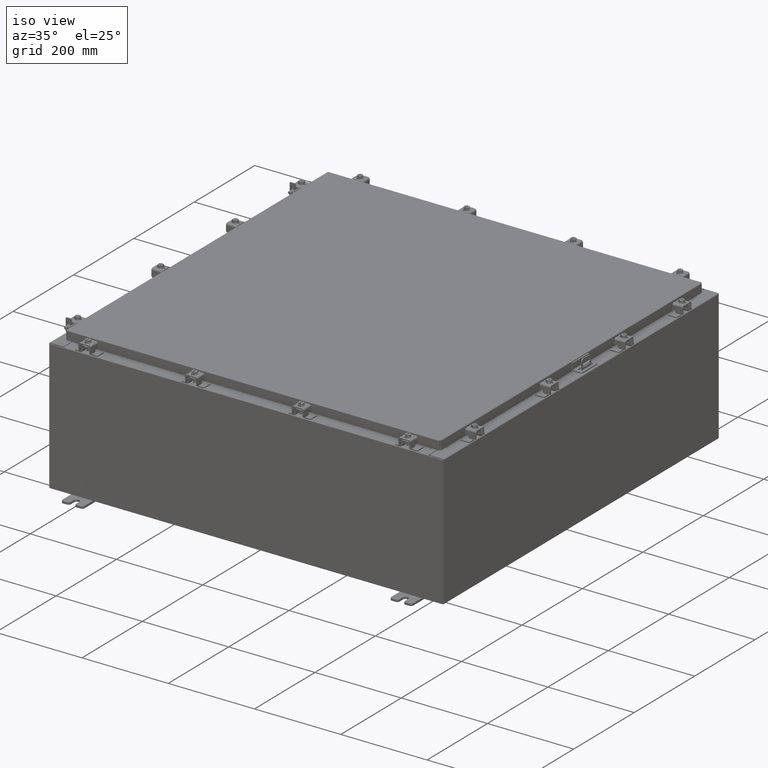
[diagram: clean part render]
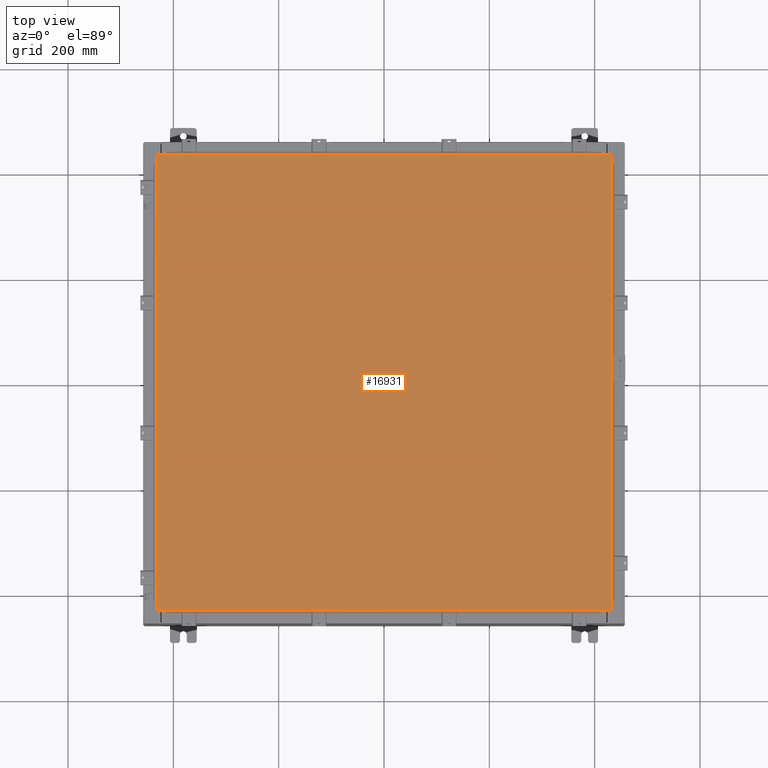
[diagram: tour spotlight — one face highlighted and labeled with its STEP entity id]
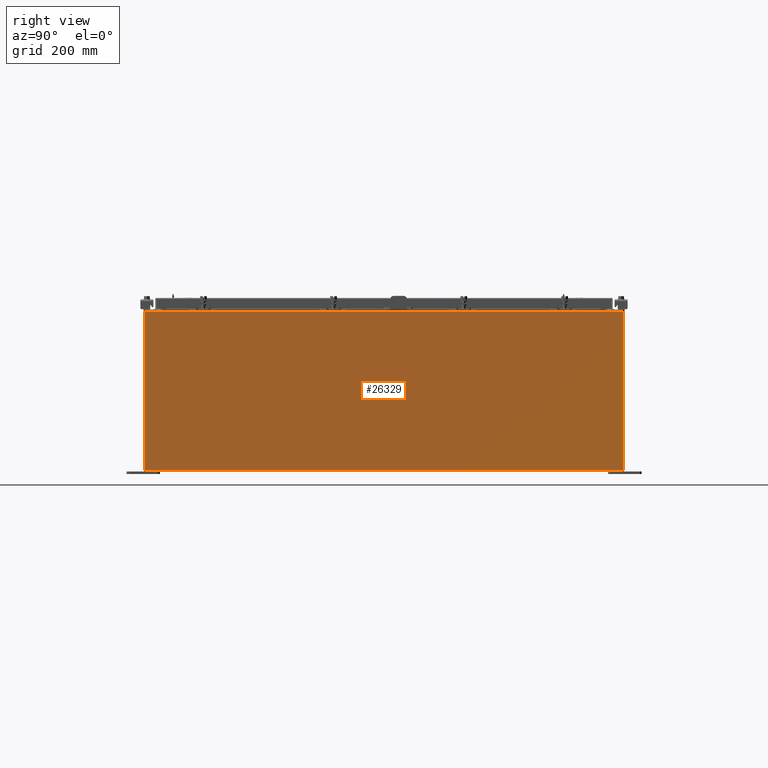
[diagram: tour spotlight — one face highlighted and labeled with its STEP entity id]
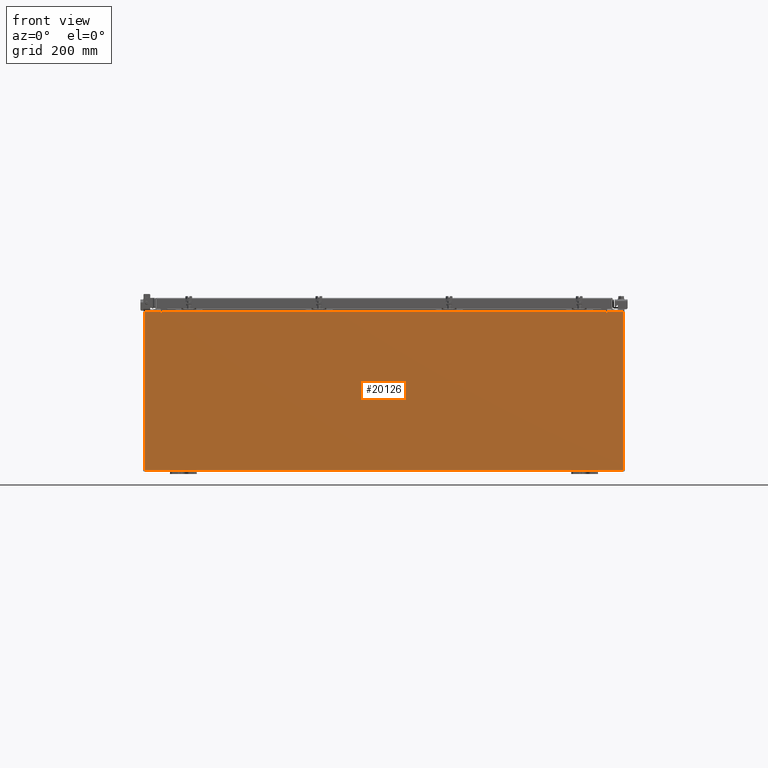
[diagram: tour spotlight — one face highlighted and labeled with its STEP entity id]
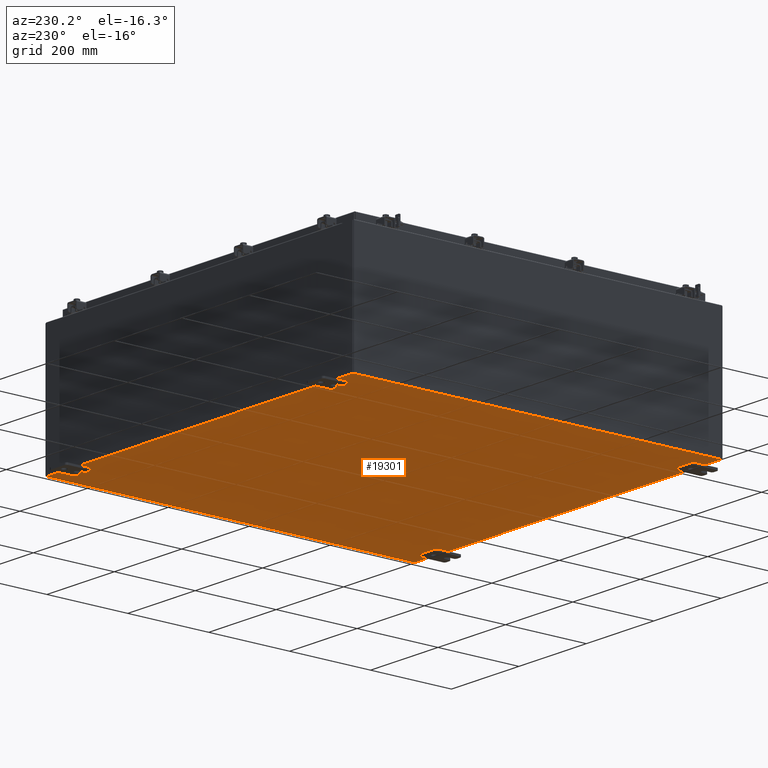
[diagram: tour spotlight — one face highlighted and labeled with its STEP entity id]
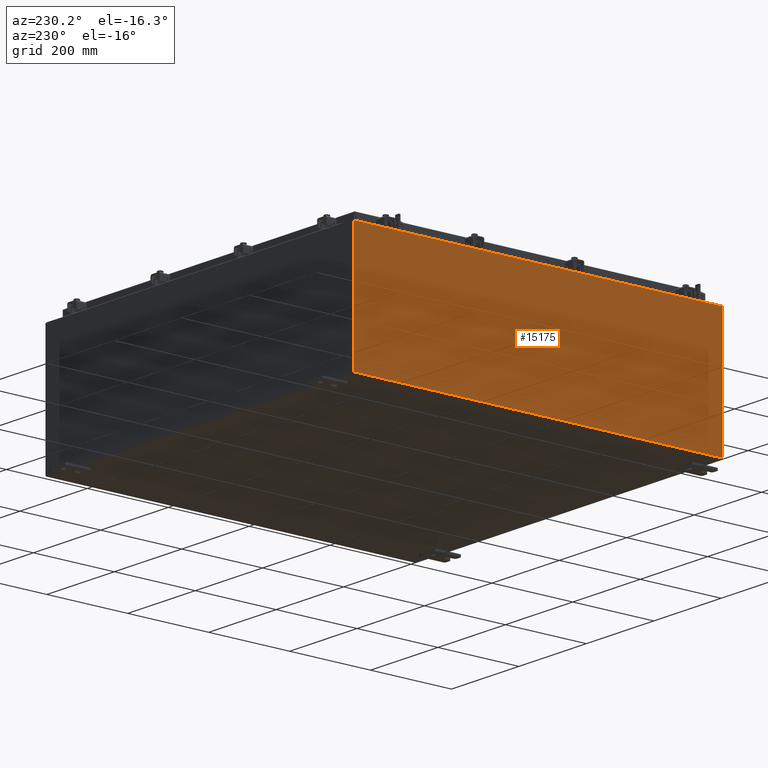
[diagram: tour spotlight — one face highlighted and labeled with its STEP entity id]
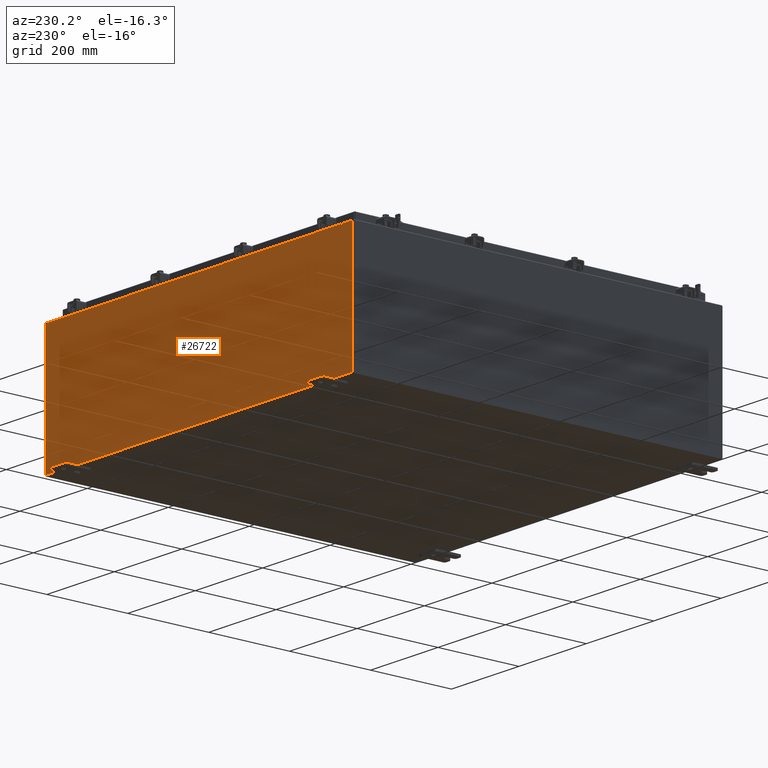
[diagram: tour spotlight — one face highlighted and labeled with its STEP entity id]
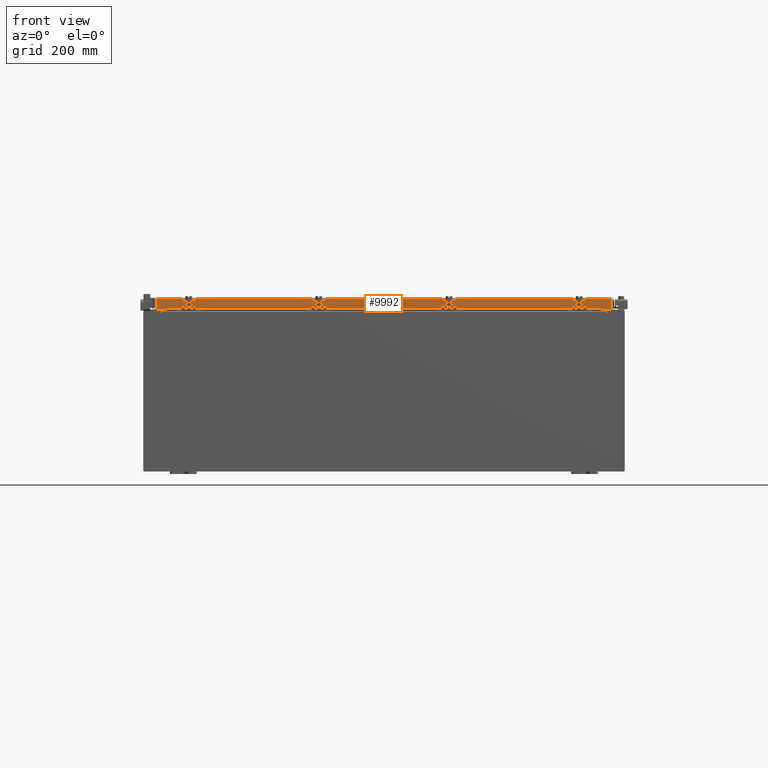
[diagram: tour spotlight — one face highlighted and labeled with its STEP entity id]
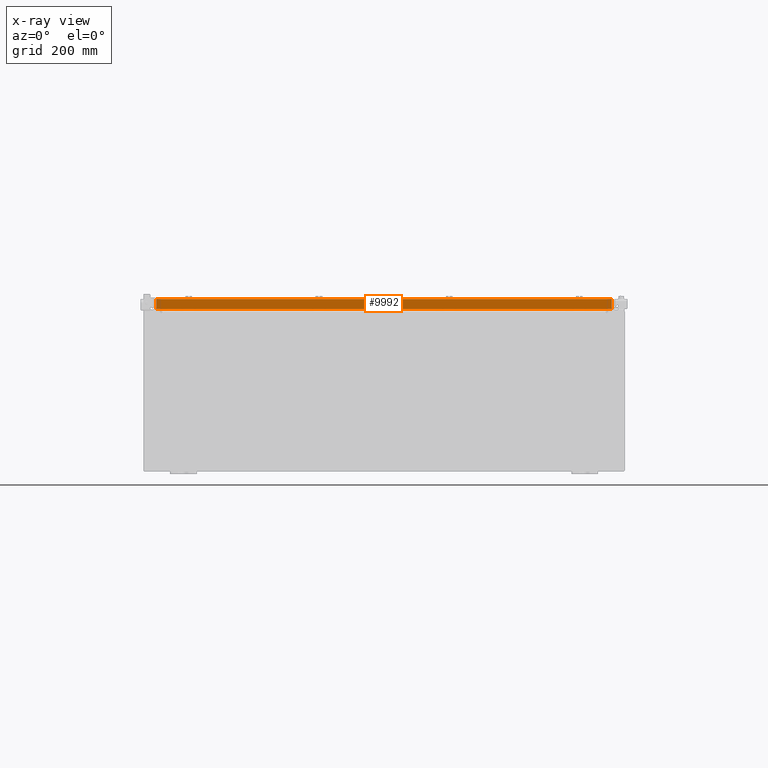
[diagram: x-ray of the same camera — body ghosted, this tour face saturated]
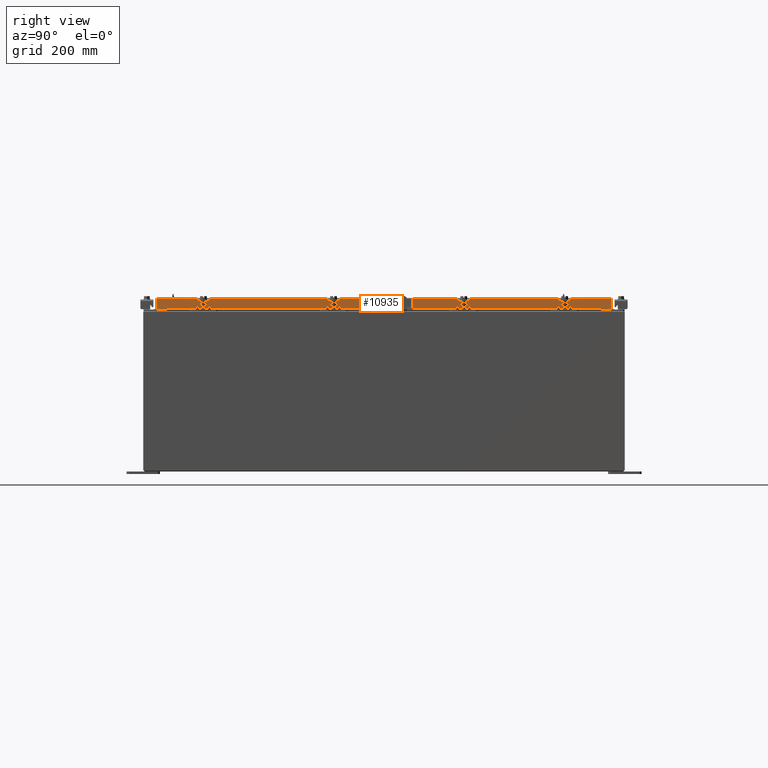
[diagram: tour spotlight — one face highlighted and labeled with its STEP entity id]
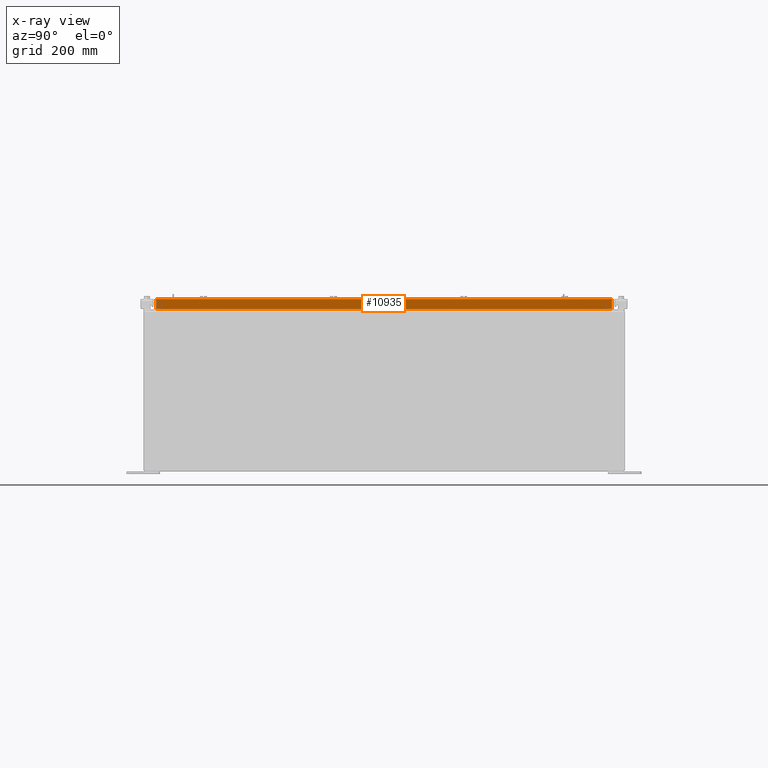
[diagram: x-ray of the same camera — body ghosted, this tour face saturated]
A machine part: a face-by-face anatomy tour. The part has 2822 B-rep faces; the first image is the clean iso view, then the 8 largest visible faces are spotlighted one at a time (largest first), each with its STEP entity span.

Face 1 — top view, entity #16931. In plain terms, the highlighted planar face has unit normal (0, 0, -1).
Definition (entity closure, byte-faithful):
#135 = CARTESIAN_POINT ( 'NONE',  ( 17.00630000000000000, -17.00630000000000000, 0.0000000000000000000 ) ) ;
#420 = VERTEX_POINT ( 'NONE', #16149 ) ;
#1603 = CARTESIAN_POINT ( 'NONE',  ( 0.0000000000000000000, 0.0000000000000000000, 0.0000000000000000000 ) ) ;
#1652 = LINE ( 'NONE', #9527, #6563 ) ;
#1814 = CARTESIAN_POINT ( 'NONE',  ( -17.00630000000000000, 17.00630000000000000, 0.0000000000000000000 ) ) ;
#4761 = LINE ( 'NONE', #1814, #10307 ) ;
#5596 = CARTESIAN_POINT ( 'NONE',  ( -17.00630000000000000, -17.00630000000000000, 0.0000000000000000000 ) ) ;
#5983 = EDGE_CURVE ( 'NONE', #12420, #420, #8055, .T. ) ;
#6186 = EDGE_CURVE ( 'NONE', #420, #9768, #4761, .T. ) ;
#6563 = VECTOR ( 'NONE', #15863, 39.37007874015748100 ) ;
#7317 = ORIENTED_EDGE ( 'NONE', *, *, #5983, .T. ) ;
#7468 = EDGE_LOOP ( 'NONE', ( #26010, #16503, #7317, #14962 ) ) ;
#7912 = DIRECTION ( 'NONE',  ( -1.000000000000000000, 0.0000000000000000000, -0.0000000000000000000 ) ) ;
#8055 = LINE ( 'NONE', #24265, #19197 ) ;
#9028 = VERTEX_POINT ( 'NONE', #135 ) ;
#9385 = EDGE_CURVE ( 'NONE', #9768, #9028, #1652, .T. ) ;
#9527 = CARTESIAN_POINT ( 'NONE',  ( -17.00630000000000000, -17.00630000000000000, 0.0000000000000000000 ) ) ;
#9566 = DIRECTION ( 'NONE',  ( -1.000000000000000000, -0.0000000000000000000, -0.0000000000000000000 ) ) ;
#9768 = VERTEX_POINT ( 'NONE', #5596 ) ;
#9887 = PLANE ( 'NONE',  #11841 ) ;
#10307 = VECTOR ( 'NONE', #24799, 39.37007874015748100 ) ;
#11013 = EDGE_CURVE ( 'NONE', #9028, #12420, #13071, .T. ) ;
#11841 = AXIS2_PLACEMENT_3D ( 'NONE', #1603, #20449, #7912 ) ;
#12420 = VERTEX_POINT ( 'NONE', #24519 ) ;
#13071 = LINE ( 'NONE', #26804, #18001 ) ;
#14208 = DIRECTION ( 'NONE',  ( 0.0000000000000000000, 1.000000000000000000, 0.0000000000000000000 ) ) ;
#14962 = ORIENTED_EDGE ( 'NONE', *, *, #6186, .T. ) ;
#15863 = DIRECTION ( 'NONE',  ( 1.000000000000000000, -0.0000000000000000000, -0.0000000000000000000 ) ) ;
#16149 = CARTESIAN_POINT ( 'NONE',  ( -17.00630000000000000, 17.00630000000000000, 0.0000000000000000000 ) ) ;
#16167 = FACE_OUTER_BOUND ( 'NONE', #7468, .T. ) ;
#16503 = ORIENTED_EDGE ( 'NONE', *, *, #11013, .T. ) ;
#16931 = ADVANCED_FACE ( 'NONE', ( #16167 ), #9887, .F. ) ;
#18001 = VECTOR ( 'NONE', #14208, 39.37007874015748100 ) ;
#19197 = VECTOR ( 'NONE', #9566, 39.37007874015748100 ) ;
#20449 = DIRECTION ( 'NONE',  ( 0.0000000000000000000, 0.0000000000000000000, -1.000000000000000000 ) ) ;
#24265 = CARTESIAN_POINT ( 'NONE',  ( 17.00630000000000000, 17.00630000000000000, 0.0000000000000000000 ) ) ;
#24519 = CARTESIAN_POINT ( 'NONE',  ( 17.00630000000000000, 17.00630000000000000, 0.0000000000000000000 ) ) ;
#24799 = DIRECTION ( 'NONE',  ( 0.0000000000000000000, -1.000000000000000000, 0.0000000000000000000 ) ) ;
#26010 = ORIENTED_EDGE ( 'NONE', *, *, #9385, .T. ) ;
#26804 = CARTESIAN_POINT ( 'NONE',  ( 17.00630000000000000, -17.00630000000000000, 0.0000000000000000000 ) ) ;

Face 2 — right view, entity #26329. In plain terms, the highlighted planar face has unit normal (-1, 0, 0).
Definition (entity closure, byte-faithful):
#560 = CARTESIAN_POINT ( 'NONE',  ( 18.00000000000000000, -17.92530000000000000, 0.01299999999999984700 ) ) ;
#2002 = VERTEX_POINT ( 'NONE', #4715 ) ;
#2028 = PLANE ( 'NONE',  #10430 ) ;
#2374 = DIRECTION ( 'NONE',  ( -3.482016343714355500E-015, 0.0000000000000000000, -1.000000000000000000 ) ) ;
#2669 = DIRECTION ( 'NONE',  ( 2.122662239958547800E-031, -1.000000000000000000, 6.096072018129156600E-017 ) ) ;
#3449 = CARTESIAN_POINT ( 'NONE',  ( 18.00000000000004300, 17.92530000000000000, 11.83760000000000200 ) ) ;
#4116 = DIRECTION ( 'NONE',  ( 3.482016343714355100E-015, 0.0000000000000000000, 1.000000000000000000 ) ) ;
#4299 = CARTESIAN_POINT ( 'NONE',  ( 18.00000000000000000, 17.92530000000000000, -5.965204533939718800E-014 ) ) ;
#4715 = CARTESIAN_POINT ( 'NONE',  ( 18.00000000000000000, -17.92530000000000000, 0.01300000000000022700 ) ) ;
#5634 = EDGE_CURVE ( 'NONE', #8447, #2002, #26445, .T. ) ;
#6492 = VECTOR ( 'NONE', #2669, 39.37007874015748100 ) ;
#8447 = VERTEX_POINT ( 'NONE', #25559 ) ;
#9958 = VECTOR ( 'NONE', #2374, 39.37007874015748100 ) ;
#10190 = ORIENTED_EDGE ( 'NONE', *, *, #21989, .F. ) ;
#10430 = AXIS2_PLACEMENT_3D ( 'NONE', #27157, #20795, #4116 ) ;
#12483 = ORIENTED_EDGE ( 'NONE', *, *, #14239, .T. ) ;
#13241 = CARTESIAN_POINT ( 'NONE',  ( 18.00000000000004300, 17.92530000000000000, 11.83760000000000200 ) ) ;
#13562 = VECTOR ( 'NONE', #18964, 39.37007874015748100 ) ;
#13875 = LINE ( 'NONE', #13241, #24389 ) ;
#14239 = EDGE_CURVE ( 'NONE', #27001, #20244, #26720, .T. ) ;
#17042 = CARTESIAN_POINT ( 'NONE',  ( 18.00000000000000000, -17.92530000000000000, -6.293710784286997500E-014 ) ) ;
#17311 = ORIENTED_EDGE ( 'NONE', *, *, #24605, .T. ) ;
#18964 = DIRECTION ( 'NONE',  ( 3.482016343714355500E-015, -1.832640180902292400E-016, 1.000000000000000000 ) ) ;
#19922 = EDGE_LOOP ( 'NONE', ( #17311, #23599, #10190, #12483 ) ) ;
#20244 = VERTEX_POINT ( 'NONE', #3449 ) ;
#20795 = DIRECTION ( 'NONE',  ( -1.000000000000000000, 0.0000000000000000000, 3.482016343714355100E-015 ) ) ;
#21989 = EDGE_CURVE ( 'NONE', #27001, #2002, #23198, .T. ) ;
#22117 = FACE_OUTER_BOUND ( 'NONE', #19922, .T. ) ;
#23198 = LINE ( 'NONE', #560, #6492 ) ;
#23599 = ORIENTED_EDGE ( 'NONE', *, *, #5634, .T. ) ;
#23689 = DIRECTION ( 'NONE',  ( -0.0000000000000000000, -1.000000000000000000, -0.0000000000000000000 ) ) ;
#24389 = VECTOR ( 'NONE', #23689, 39.37007874015748100 ) ;
#24605 = EDGE_CURVE ( 'NONE', #20244, #8447, #13875, .T. ) ;
#25075 = CARTESIAN_POINT ( 'NONE',  ( 18.00000000000000000, 17.92530000000000000, 0.01299999999999766100 ) ) ;
#25559 = CARTESIAN_POINT ( 'NONE',  ( 18.00000000000004300, -17.92530000000000000, 11.83760000000000200 ) ) ;
#26329 = ADVANCED_FACE ( 'NONE', ( #22117 ), #2028, .F. ) ;
#26445 = LINE ( 'NONE', #17042, #9958 ) ;
#26720 = LINE ( 'NONE', #4299, #13562 ) ;
#27001 = VERTEX_POINT ( 'NONE', #25075 ) ;
#27157 = CARTESIAN_POINT ( 'NONE',  ( 18.00000000000000000, 0.0000000000000000000, -6.293710784286997500E-014 ) ) ;

Face 3 — front view, entity #20126. In plain terms, the highlighted planar face has unit normal (-0, 1, -0).
Definition (entity closure, byte-faithful):
#187 = DIRECTION ( 'NONE',  ( -8.681145560799821800E-014, 0.0000000000000000000, -1.000000000000000000 ) ) ;
#285 = CARTESIAN_POINT ( 'NONE',  ( 16.63720000000000400, 0.0000000000000000000, 5.874949999999999200 ) ) ;
#575 = VECTOR ( 'NONE', #17950, 39.37007874015748100 ) ;
#804 = EDGE_CURVE ( 'NONE', #23674, #12565, #9283, .T. ) ;
#960 = DIRECTION ( 'NONE',  ( 1.000000000000000000, 0.0000000000000000000, 3.048036009064577000E-017 ) ) ;
#1239 = LINE ( 'NONE', #15818, #575 ) ;
#1430 = VERTEX_POINT ( 'NONE', #17681 ) ;
#1512 = ORIENTED_EDGE ( 'NONE', *, *, #1630, .F. ) ;
#1555 = DIRECTION ( 'NONE',  ( 0.0000000000000000000, 0.0000000000000000000, 1.000000000000000000 ) ) ;
#1630 = EDGE_CURVE ( 'NONE', #14278, #10570, #1679, .T. ) ;
#1670 = CARTESIAN_POINT ( 'NONE',  ( -17.92529999999999600, 0.0000000000000000000, -5.925300000000000000 ) ) ;
#1679 = LINE ( 'NONE', #16104, #23293 ) ;
#1779 = VECTOR ( 'NONE', #23397, 39.37007874015748100 ) ;
#1960 = LINE ( 'NONE', #20729, #7532 ) ;
#2409 = EDGE_CURVE ( 'NONE', #12565, #3392, #1960, .T. ) ;
#2474 = CARTESIAN_POINT ( 'NONE',  ( -16.67455000000000000, 0.0000000000000000000, 5.925299999999999100 ) ) ;
#2906 = ORIENTED_EDGE ( 'NONE', *, *, #16742, .T. ) ;
#3088 = EDGE_CURVE ( 'NONE', #13089, #10570, #11096, .T. ) ;
#3235 = ORIENTED_EDGE ( 'NONE', *, *, #2409, .T. ) ;
#3337 = DIRECTION ( 'NONE',  ( 0.0000000000000000000, 0.0000000000000000000, 1.000000000000000000 ) ) ;
#3360 = DIRECTION ( 'NONE',  ( 0.0000000000000000000, -1.000000000000000000, 0.0000000000000000000 ) ) ;
#3392 = VERTEX_POINT ( 'NONE', #1670 ) ;
#3747 = VERTEX_POINT ( 'NONE', #15455 ) ;
#3957 = DIRECTION ( 'NONE',  ( -1.000000000000000000, -0.0000000000000000000, -0.0000000000000000000 ) ) ;
#3969 = CARTESIAN_POINT ( 'NONE',  ( 17.92530000000000400, 0.0000000000000000000, -5.925300000000000000 ) ) ;
#4551 = FACE_OUTER_BOUND ( 'NONE', #19842, .T. ) ;
#4988 = ORIENTED_EDGE ( 'NONE', *, *, #7119, .F. ) ;
#5010 = CARTESIAN_POINT ( 'NONE',  ( -17.92529999999999600, 0.0000000000000000000, 5.925299999999999100 ) ) ;
#5681 = VERTEX_POINT ( 'NONE', #2474 ) ;
#6252 = CARTESIAN_POINT ( 'NONE',  ( 17.92530000000000400, 0.0000000000000000000, 5.925300000000000000 ) ) ;
#6279 = CARTESIAN_POINT ( 'NONE',  ( -16.67455000000000000, 0.0000000000000000000, 5.874949999999999200 ) ) ;
#6285 = CARTESIAN_POINT ( 'NONE',  ( 16.63720000000000400, 0.0000000000000000000, 5.912299999999999200 ) ) ;
#6580 = VERTEX_POINT ( 'NONE', #5010 ) ;
#6626 = CARTESIAN_POINT ( 'NONE',  ( 16.65587500000000500, 0.0000000000000000000, 5.874949999999999200 ) ) ;
#6916 = VECTOR ( 'NONE', #960, 39.37007874015748100 ) ;
#6999 = VERTEX_POINT ( 'NONE', #21015 ) ;
#7119 = EDGE_CURVE ( 'NONE', #13089, #3747, #24059, .T. ) ;
#7485 = CARTESIAN_POINT ( 'NONE',  ( 0.0000000000000000000, 0.0000000000000000000, 0.0000000000000000000 ) ) ;
#7532 = VECTOR ( 'NONE', #3957, 39.37007874015748100 ) ;
#7936 = ORIENTED_EDGE ( 'NONE', *, *, #3088, .T. ) ;
#8316 = VECTOR ( 'NONE', #187, 39.37007874015748100 ) ;
#8354 = ORIENTED_EDGE ( 'NONE', *, *, #26423, .F. ) ;
#8522 = ORIENTED_EDGE ( 'NONE', *, *, #15311, .F. ) ;
#8697 = DIRECTION ( 'NONE',  ( 0.0000000000000000000, 0.0000000000000000000, -1.000000000000000000 ) ) ;
#9283 = LINE ( 'NONE', #17514, #14207 ) ;
#9946 = DIRECTION ( 'NONE',  ( -0.0000000000000000000, -0.0000000000000000000, 1.000000000000000000 ) ) ;
#10096 = VECTOR ( 'NONE', #3337, 39.37007874015748100 ) ;
#10570 = VERTEX_POINT ( 'NONE', #6285 ) ;
#10602 = CARTESIAN_POINT ( 'NONE',  ( 16.67454999999949500, -0.0000000000000000000, -1.447541957108302900E-012 ) ) ;
#10893 = EDGE_CURVE ( 'NONE', #18286, #5681, #26885, .T. ) ;
#11096 = LINE ( 'NONE', #24830, #21604 ) ;
#11366 = DIRECTION ( 'NONE',  ( 0.0000000000000000000, 0.0000000000000000000, -1.000000000000000000 ) ) ;
#11798 = CIRCLE ( 'NONE', #16483, 0.01867499999999949400 ) ;
#12120 = DIRECTION ( 'NONE',  ( -0.0000000000000000000, 1.000000000000000000, -0.0000000000000000000 ) ) ;
#12565 = VERTEX_POINT ( 'NONE', #3969 ) ;
#13089 = VERTEX_POINT ( 'NONE', #17828 ) ;
#14207 = VECTOR ( 'NONE', #11366, 39.37007874015748100 ) ;
#14278 = VERTEX_POINT ( 'NONE', #285 ) ;
#15311 = EDGE_CURVE ( 'NONE', #3747, #18286, #24683, .T. ) ;
#15455 = CARTESIAN_POINT ( 'NONE',  ( -16.63720000000000000, -0.0000000000000000000, 5.874949999999999200 ) ) ;
#15599 = ORIENTED_EDGE ( 'NONE', *, *, #19185, .F. ) ;
#15818 = CARTESIAN_POINT ( 'NONE',  ( -17.92529999999999600, 0.0000000000000000000, 5.925299999999999100 ) ) ;
#16104 = CARTESIAN_POINT ( 'NONE',  ( 16.63720000000000400, 0.0000000000000000000, 0.0000000000000000000 ) ) ;
#16433 = ORIENTED_EDGE ( 'NONE', *, *, #21389, .T. ) ;
#16483 = AXIS2_PLACEMENT_3D ( 'NONE', #6626, #21268, #8697 ) ;
#16742 = EDGE_CURVE ( 'NONE', #1430, #23674, #26270, .T. ) ;
#17514 = CARTESIAN_POINT ( 'NONE',  ( 17.92530000000000400, 0.0000000000000000000, 5.925300000000000000 ) ) ;
#17681 = CARTESIAN_POINT ( 'NONE',  ( 16.67455000000000700, 0.0000000000000000000, 5.925300000000000000 ) ) ;
#17721 = CARTESIAN_POINT ( 'NONE',  ( -17.92529999999999600, 0.0000000000000000000, 5.925299999999999100 ) ) ;
#17828 = CARTESIAN_POINT ( 'NONE',  ( -16.63720000000000000, 3.756290991288361700E-016, 5.912299999999999200 ) ) ;
#17942 = LINE ( 'NONE', #20516, #23513 ) ;
#17950 = DIRECTION ( 'NONE',  ( 1.000000000000000000, 0.0000000000000000000, 3.048036009064577000E-017 ) ) ;
#17995 = CARTESIAN_POINT ( 'NONE',  ( -16.67455000000000000, -0.0000000000000000000, 0.0000000000000000000 ) ) ;
#18028 = DIRECTION ( 'NONE',  ( 0.0000000000000000000, -0.0000000000000000000, -1.000000000000000000 ) ) ;
#18280 = ORIENTED_EDGE ( 'NONE', *, *, #22227, .T. ) ;
#18286 = VERTEX_POINT ( 'NONE', #6279 ) ;
#19182 = CARTESIAN_POINT ( 'NONE',  ( -16.63720000000000000, -0.0000000000000000000, 0.0000000000000000000 ) ) ;
#19185 = EDGE_CURVE ( 'NONE', #6999, #14278, #11798, .T. ) ;
#19483 = LINE ( 'NONE', #10602, #8316 ) ;
#19842 = EDGE_LOOP ( 'NONE', ( #23203, #8522, #4988, #7936, #1512, #15599, #8354, #2906, #23710, #3235, #16433, #18280 ) ) ;
#20126 = ADVANCED_FACE ( 'NONE', ( #4551 ), #24255, .F. ) ;
#20516 = CARTESIAN_POINT ( 'NONE',  ( -17.92529999999999600, 0.0000000000000000000, 5.925299999999999100 ) ) ;
#20729 = CARTESIAN_POINT ( 'NONE',  ( -17.92529999999999600, 0.0000000000000000000, -5.925300000000000000 ) ) ;
#21015 = CARTESIAN_POINT ( 'NONE',  ( 16.67455000000000400, 0.0000000000000000000, 5.874949999999999200 ) ) ;
#21268 = DIRECTION ( 'NONE',  ( -0.0000000000000000000, 1.000000000000000000, -0.0000000000000000000 ) ) ;
#21389 = EDGE_CURVE ( 'NONE', #3392, #6580, #17942, .T. ) ;
#21604 = VECTOR ( 'NONE', #26968, 39.37007874015748100 ) ;
#22227 = EDGE_CURVE ( 'NONE', #6580, #5681, #1239, .T. ) ;
#23203 = ORIENTED_EDGE ( 'NONE', *, *, #10893, .F. ) ;
#23293 = VECTOR ( 'NONE', #1555, 39.37007874015748100 ) ;
#23397 = DIRECTION ( 'NONE',  ( 0.0000000000000000000, 0.0000000000000000000, -1.000000000000000000 ) ) ;
#23513 = VECTOR ( 'NONE', #9946, 39.37007874015748100 ) ;
#23674 = VERTEX_POINT ( 'NONE', #6252 ) ;
#23710 = ORIENTED_EDGE ( 'NONE', *, *, #804, .T. ) ;
#24059 = LINE ( 'NONE', #19182, #1779 ) ;
#24255 = PLANE ( 'NONE',  #26160 ) ;
#24683 = CIRCLE ( 'NONE', #24823, 0.01867499999999949400 ) ;
#24692 = CARTESIAN_POINT ( 'NONE',  ( -16.65587499999999800, 0.0000000000000000000, 5.874949999999999200 ) ) ;
#24823 = AXIS2_PLACEMENT_3D ( 'NONE', #24692, #12120, #26824 ) ;
#24830 = CARTESIAN_POINT ( 'NONE',  ( -16.63720000000000000, 3.756290991288361700E-016, 5.912299999999999200 ) ) ;
#26160 = AXIS2_PLACEMENT_3D ( 'NONE', #7485, #3360, #18028 ) ;
#26270 = LINE ( 'NONE', #17721, #6916 ) ;
#26423 = EDGE_CURVE ( 'NONE', #1430, #6999, #19483, .T. ) ;
#26824 = DIRECTION ( 'NONE',  ( 0.0000000000000000000, 0.0000000000000000000, -1.000000000000000000 ) ) ;
#26885 = LINE ( 'NONE', #17995, #10096 ) ;
#26968 = DIRECTION ( 'NONE',  ( 1.000000000000000000, 0.0000000000000000000, 0.0000000000000000000 ) ) ;

Face 4 — auxiliary view, entity #19301. In plain terms, the highlighted planar face has unit normal (0, 0, -1).
Definition (entity closure, byte-faithful):
#1263 = EDGE_CURVE ( 'NONE', #11373, #1932, #25022, .T. ) ;
#1908 = CARTESIAN_POINT ( 'NONE',  ( -17.91229999999999800, -17.92530000000000000, -0.07469999999999994700 ) ) ;
#1932 = VERTEX_POINT ( 'NONE', #4440 ) ;
#1935 = AXIS2_PLACEMENT_3D ( 'NONE', #19428, #25768, #13189 ) ;
#2676 = PLANE ( 'NONE',  #1935 ) ;
#4137 = VERTEX_POINT ( 'NONE', #1908 ) ;
#4440 = CARTESIAN_POINT ( 'NONE',  ( 17.91229999999999800, -17.92530000000000000, -0.07470000000000000300 ) ) ;
#5541 = VECTOR ( 'NONE', #10006, 39.37007874015748100 ) ;
#5812 = VERTEX_POINT ( 'NONE', #7056 ) ;
#6336 = VECTOR ( 'NONE', #25573, 39.37007874015748100 ) ;
#7056 = CARTESIAN_POINT ( 'NONE',  ( -17.91229999999999800, 17.92530000000000000, -0.07470000000000000300 ) ) ;
#9064 = ORIENTED_EDGE ( 'NONE', *, *, #20315, .F. ) ;
#9820 = FACE_OUTER_BOUND ( 'NONE', #11056, .T. ) ;
#10006 = DIRECTION ( 'NONE',  ( 1.000000000000000000, 0.0000000000000000000, 0.0000000000000000000 ) ) ;
#10866 = EDGE_CURVE ( 'NONE', #11373, #5812, #21281, .T. ) ;
#11056 = EDGE_LOOP ( 'NONE', ( #9064, #12832, #21202, #21673 ) ) ;
#11373 = VERTEX_POINT ( 'NONE', #15194 ) ;
#11653 = DIRECTION ( 'NONE',  ( -1.000000000000000000, -0.0000000000000000000, -0.0000000000000000000 ) ) ;
#11749 = LINE ( 'NONE', #12130, #5541 ) ;
#12130 = CARTESIAN_POINT ( 'NONE',  ( -18.00000000000000000, -17.92530000000000000, -0.07470000000000000300 ) ) ;
#12832 = ORIENTED_EDGE ( 'NONE', *, *, #21921, .T. ) ;
#13189 = DIRECTION ( 'NONE',  ( -1.000000000000000000, 0.0000000000000000000, -0.0000000000000000000 ) ) ;
#14016 = LINE ( 'NONE', #15010, #24525 ) ;
#15010 = CARTESIAN_POINT ( 'NONE',  ( -17.91229999999999800, -17.92530000000000000, -0.07469999999999994700 ) ) ;
#15194 = CARTESIAN_POINT ( 'NONE',  ( 17.91229999999999800, 17.92530000000000000, -0.07470000000000251400 ) ) ;
#15688 = VECTOR ( 'NONE', #11653, 39.37007874015748100 ) ;
#19301 = ADVANCED_FACE ( 'NONE', ( #9820 ), #2676, .T. ) ;
#19428 = CARTESIAN_POINT ( 'NONE',  ( 0.0000000000000000000, 0.0000000000000000000, -0.07470000000000000300 ) ) ;
#20315 = EDGE_CURVE ( 'NONE', #4137, #1932, #11749, .T. ) ;
#21202 = ORIENTED_EDGE ( 'NONE', *, *, #10866, .F. ) ;
#21281 = LINE ( 'NONE', #21934, #15688 ) ;
#21673 = ORIENTED_EDGE ( 'NONE', *, *, #1263, .T. ) ;
#21921 = EDGE_CURVE ( 'NONE', #4137, #5812, #14016, .T. ) ;
#21934 = CARTESIAN_POINT ( 'NONE',  ( -18.00000000000000000, 17.92530000000000000, -0.07470000000000000300 ) ) ;
#23451 = CARTESIAN_POINT ( 'NONE',  ( 17.91229999999999800, 17.92530000000000000, -0.07470000000000251400 ) ) ;
#24525 = VECTOR ( 'NONE', #25481, 39.37007874015748100 ) ;
#25022 = LINE ( 'NONE', #23451, #6336 ) ;
#25481 = DIRECTION ( 'NONE',  ( -0.0000000000000000000, 1.000000000000000000, -0.0000000000000000000 ) ) ;
#25573 = DIRECTION ( 'NONE',  ( -0.0000000000000000000, -1.000000000000000000, 8.208677865577646300E-017 ) ) ;
#25768 = DIRECTION ( 'NONE',  ( 0.0000000000000000000, 0.0000000000000000000, -1.000000000000000000 ) ) ;

Face 5 — auxiliary view, entity #15175. In plain terms, the highlighted planar face has unit normal (1, 0, 0).
Definition (entity closure, byte-faithful):
#84 = VECTOR ( 'NONE', #24461, 39.37007874015748100 ) ;
#206 = CARTESIAN_POINT ( 'NONE',  ( -18.00000000000000000, 17.92530000000000000, -6.293710784286997500E-014 ) ) ;
#1260 = PLANE ( 'NONE',  #17794 ) ;
#1412 = LINE ( 'NONE', #13999, #84 ) ;
#2120 = CARTESIAN_POINT ( 'NONE',  ( -18.00000000000004300, -17.92530000000000000, 11.83760000000000200 ) ) ;
#3766 = VECTOR ( 'NONE', #4303, 39.37007874015748100 ) ;
#4182 = VECTOR ( 'NONE', #19072, 39.37007874015748100 ) ;
#4303 = DIRECTION ( 'NONE',  ( 0.0000000000000000000, 1.000000000000000000, 0.0000000000000000000 ) ) ;
#4665 = LINE ( 'NONE', #12559, #15133 ) ;
#5088 = LINE ( 'NONE', #8422, #3766 ) ;
#8422 = CARTESIAN_POINT ( 'NONE',  ( -18.00000000000004300, -17.92530000000000000, 11.83760000000000200 ) ) ;
#9633 = CARTESIAN_POINT ( 'NONE',  ( -18.00000000000000000, 0.0000000000000000000, -6.293710784286997500E-014 ) ) ;
#9638 = ORIENTED_EDGE ( 'NONE', *, *, #17489, .T. ) ;
#9748 = LINE ( 'NONE', #206, #4182 ) ;
#11317 = ORIENTED_EDGE ( 'NONE', *, *, #15480, .F. ) ;
#11572 = VERTEX_POINT ( 'NONE', #19880 ) ;
#11760 = DIRECTION ( 'NONE',  ( 3.482016343714355100E-015, 0.0000000000000000000, -1.000000000000000000 ) ) ;
#12559 = CARTESIAN_POINT ( 'NONE',  ( -18.00000000000000000, 17.92530000000000000, 0.01299999999999984700 ) ) ;
#13603 = EDGE_LOOP ( 'NONE', ( #25285, #14570, #11317, #9638 ) ) ;
#13999 = CARTESIAN_POINT ( 'NONE',  ( -18.00000000000000000, -17.92530000000000000, -6.293710784286997500E-014 ) ) ;
#14570 = ORIENTED_EDGE ( 'NONE', *, *, #20975, .T. ) ;
#14678 = DIRECTION ( 'NONE',  ( -0.0000000000000000000, 1.000000000000000000, -0.0000000000000000000 ) ) ;
#15133 = VECTOR ( 'NONE', #14678, 39.37007874015748100 ) ;
#15175 = ADVANCED_FACE ( 'NONE', ( #26671 ), #1260, .F. ) ;
#15480 = EDGE_CURVE ( 'NONE', #24191, #24273, #4665, .T. ) ;
#16388 = CARTESIAN_POINT ( 'NONE',  ( -18.00000000000000000, 17.92530000000000000, 0.01299999999999984700 ) ) ;
#17489 = EDGE_CURVE ( 'NONE', #24191, #23704, #1412, .T. ) ;
#17794 = AXIS2_PLACEMENT_3D ( 'NONE', #9633, #24328, #11760 ) ;
#19072 = DIRECTION ( 'NONE',  ( 3.482016343714355500E-015, 0.0000000000000000000, -1.000000000000000000 ) ) ;
#19880 = CARTESIAN_POINT ( 'NONE',  ( -18.00000000000004300, 17.92530000000000000, 11.83760000000000200 ) ) ;
#20975 = EDGE_CURVE ( 'NONE', #11572, #24273, #9748, .T. ) ;
#22426 = CARTESIAN_POINT ( 'NONE',  ( -18.00000000000000000, -17.92530000000000000, 0.01299999999999984700 ) ) ;
#23704 = VERTEX_POINT ( 'NONE', #2120 ) ;
#23719 = EDGE_CURVE ( 'NONE', #23704, #11572, #5088, .T. ) ;
#24191 = VERTEX_POINT ( 'NONE', #22426 ) ;
#24273 = VERTEX_POINT ( 'NONE', #16388 ) ;
#24328 = DIRECTION ( 'NONE',  ( 1.000000000000000000, 0.0000000000000000000, 3.482016343714355100E-015 ) ) ;
#24461 = DIRECTION ( 'NONE',  ( -3.482016343714355500E-015, 0.0000000000000000000, 1.000000000000000000 ) ) ;
#25285 = ORIENTED_EDGE ( 'NONE', *, *, #23719, .T. ) ;
#26671 = FACE_OUTER_BOUND ( 'NONE', #13603, .T. ) ;

Face 6 — auxiliary view, entity #26722. In plain terms, the highlighted planar face has unit normal (0, -1, 0).
Definition (entity closure, byte-faithful):
#168 = DIRECTION ( 'NONE',  ( -1.000000000000000000, -0.0000000000000000000, -0.0000000000000000000 ) ) ;
#429 = VECTOR ( 'NONE', #21649, 39.37007874015748100 ) ;
#1312 = VECTOR ( 'NONE', #168, 39.37007874015748100 ) ;
#1489 = CARTESIAN_POINT ( 'NONE',  ( 17.92530000000000400, 0.0000000000000000000, -5.925300000000000000 ) ) ;
#1735 = VERTEX_POINT ( 'NONE', #22686 ) ;
#2531 = VERTEX_POINT ( 'NONE', #12653 ) ;
#2586 = CARTESIAN_POINT ( 'NONE',  ( -17.92529999999999600, 0.0000000000000000000, 5.925299999999999100 ) ) ;
#2955 = VERTEX_POINT ( 'NONE', #1489 ) ;
#2959 = ORIENTED_EDGE ( 'NONE', *, *, #19786, .T. ) ;
#3607 = EDGE_CURVE ( 'NONE', #7768, #7176, #17325, .T. ) ;
#3683 = CARTESIAN_POINT ( 'NONE',  ( -17.92529999999999600, 0.0000000000000000000, 5.925299999999999100 ) ) ;
#3786 = AXIS2_PLACEMENT_3D ( 'NONE', #22162, #9573, #24275 ) ;
#3826 = EDGE_CURVE ( 'NONE', #23232, #17173, #18284, .T. ) ;
#3935 = ORIENTED_EDGE ( 'NONE', *, *, #7453, .T. ) ;
#4162 = ORIENTED_EDGE ( 'NONE', *, *, #4406, .T. ) ;
#4406 = EDGE_CURVE ( 'NONE', #14649, #6085, #12657, .T. ) ;
#4564 = CARTESIAN_POINT ( 'NONE',  ( 16.65587500000000500, 0.0000000000000000000, 5.874949999999999200 ) ) ;
#4568 = DIRECTION ( 'NONE',  ( 0.0000000000000000000, 0.0000000000000000000, -1.000000000000000000 ) ) ;
#4595 = ORIENTED_EDGE ( 'NONE', *, *, #3826, .T. ) ;
#5536 = EDGE_CURVE ( 'NONE', #1735, #7768, #11295, .T. ) ;
#5672 = EDGE_CURVE ( 'NONE', #2531, #2955, #15265, .T. ) ;
#5746 = VECTOR ( 'NONE', #12525, 39.37007874015748100 ) ;
#6085 = VERTEX_POINT ( 'NONE', #9921 ) ;
#6363 = CARTESIAN_POINT ( 'NONE',  ( -16.63720000000000000, -0.0000000000000000000, 0.0000000000000000000 ) ) ;
#6499 = CARTESIAN_POINT ( 'NONE',  ( -17.92529999999999600, 0.0000000000000000000, -5.925300000000000000 ) ) ;
#6693 = DIRECTION ( 'NONE',  ( 0.0000000000000000000, 0.0000000000000000000, -1.000000000000000000 ) ) ;
#7015 = LINE ( 'NONE', #3683, #17497 ) ;
#7118 = VERTEX_POINT ( 'NONE', #21294 ) ;
#7126 = VECTOR ( 'NONE', #17375, 39.37007874015748100 ) ;
#7176 = VERTEX_POINT ( 'NONE', #19370 ) ;
#7321 = CARTESIAN_POINT ( 'NONE',  ( -17.92529999999999600, 0.0000000000000000000, 5.925299999999999100 ) ) ;
#7453 = EDGE_CURVE ( 'NONE', #1735, #2531, #7015, .T. ) ;
#7721 = VECTOR ( 'NONE', #21010, 39.37007874015748100 ) ;
#7768 = VERTEX_POINT ( 'NONE', #8980 ) ;
#7795 = EDGE_CURVE ( 'NONE', #17173, #7118, #17157, .T. ) ;
#7797 = VECTOR ( 'NONE', #24066, 39.37007874015748100 ) ;
#8633 = FACE_OUTER_BOUND ( 'NONE', #16354, .T. ) ;
#8980 = CARTESIAN_POINT ( 'NONE',  ( 16.67455000000000400, 0.0000000000000000000, 5.874949999999999200 ) ) ;
#9482 = DIRECTION ( 'NONE',  ( -0.0000000000000000000, 1.000000000000000000, -0.0000000000000000000 ) ) ;
#9573 = DIRECTION ( 'NONE',  ( 0.0000000000000000000, -1.000000000000000000, 0.0000000000000000000 ) ) ;
#9777 = LINE ( 'NONE', #20902, #20285 ) ;
#9857 = CARTESIAN_POINT ( 'NONE',  ( -16.63720000000000000, 3.756290991288361700E-016, 5.912299999999999200 ) ) ;
#9921 = CARTESIAN_POINT ( 'NONE',  ( 16.63720000000000400, 0.0000000000000000000, 5.912299999999999200 ) ) ;
#10433 = DIRECTION ( 'NONE',  ( 0.0000000000000000000, 0.0000000000000000000, 1.000000000000000000 ) ) ;
#10732 = CARTESIAN_POINT ( 'NONE',  ( -17.92529999999999600, 0.0000000000000000000, -5.925300000000000000 ) ) ;
#11155 = EDGE_CURVE ( 'NONE', #19605, #7118, #9777, .T. ) ;
#11295 = LINE ( 'NONE', #14548, #5746 ) ;
#11916 = ORIENTED_EDGE ( 'NONE', *, *, #25082, .F. ) ;
#11976 = ORIENTED_EDGE ( 'NONE', *, *, #5536, .F. ) ;
#12525 = DIRECTION ( 'NONE',  ( -8.681145560799821800E-014, 0.0000000000000000000, -1.000000000000000000 ) ) ;
#12616 = LINE ( 'NONE', #6363, #7721 ) ;
#12653 = CARTESIAN_POINT ( 'NONE',  ( 17.92530000000000400, 0.0000000000000000000, 5.925300000000000000 ) ) ;
#12657 = LINE ( 'NONE', #25623, #7126 ) ;
#13502 = EDGE_CURVE ( 'NONE', #14649, #17345, #12616, .T. ) ;
#13626 = PLANE ( 'NONE',  #3786 ) ;
#14548 = CARTESIAN_POINT ( 'NONE',  ( 16.67454999999949500, -0.0000000000000000000, -1.447541957108302900E-012 ) ) ;
#14599 = EDGE_CURVE ( 'NONE', #7176, #6085, #18156, .T. ) ;
#14649 = VERTEX_POINT ( 'NONE', #9857 ) ;
#15265 = LINE ( 'NONE', #25467, #19534 ) ;
#16042 = LINE ( 'NONE', #6499, #1312 ) ;
#16354 = EDGE_LOOP ( 'NONE', ( #19160, #11916, #18944, #4162, #17274, #22341, #11976, #3935, #18555, #2959, #4595, #18682 ) ) ;
#17157 = LINE ( 'NONE', #17349, #429 ) ;
#17173 = VERTEX_POINT ( 'NONE', #2586 ) ;
#17274 = ORIENTED_EDGE ( 'NONE', *, *, #14599, .F. ) ;
#17325 = CIRCLE ( 'NONE', #24204, 0.01867499999999949400 ) ;
#17345 = VERTEX_POINT ( 'NONE', #26214 ) ;
#17349 = CARTESIAN_POINT ( 'NONE',  ( -17.92529999999999600, 0.0000000000000000000, 5.925299999999999100 ) ) ;
#17375 = DIRECTION ( 'NONE',  ( 1.000000000000000000, 0.0000000000000000000, 0.0000000000000000000 ) ) ;
#17497 = VECTOR ( 'NONE', #22660, 39.37007874015748100 ) ;
#18156 = LINE ( 'NONE', #26484, #23054 ) ;
#18284 = LINE ( 'NONE', #7321, #7797 ) ;
#18555 = ORIENTED_EDGE ( 'NONE', *, *, #5672, .T. ) ;
#18567 = CIRCLE ( 'NONE', #21497, 0.01867499999999949400 ) ;
#18682 = ORIENTED_EDGE ( 'NONE', *, *, #7795, .T. ) ;
#18944 = ORIENTED_EDGE ( 'NONE', *, *, #13502, .F. ) ;
#19160 = ORIENTED_EDGE ( 'NONE', *, *, #11155, .F. ) ;
#19229 = DIRECTION ( 'NONE',  ( -0.0000000000000000000, 1.000000000000000000, -0.0000000000000000000 ) ) ;
#19370 = CARTESIAN_POINT ( 'NONE',  ( 16.63720000000000400, 0.0000000000000000000, 5.874949999999999200 ) ) ;
#19534 = VECTOR ( 'NONE', #4568, 39.37007874015748100 ) ;
#19605 = VERTEX_POINT ( 'NONE', #22525 ) ;
#19786 = EDGE_CURVE ( 'NONE', #2955, #23232, #16042, .T. ) ;
#20138 = DIRECTION ( 'NONE',  ( 0.0000000000000000000, 0.0000000000000000000, 1.000000000000000000 ) ) ;
#20285 = VECTOR ( 'NONE', #10433, 39.37007874015748100 ) ;
#20902 = CARTESIAN_POINT ( 'NONE',  ( -16.67455000000000000, -0.0000000000000000000, 0.0000000000000000000 ) ) ;
#21010 = DIRECTION ( 'NONE',  ( 0.0000000000000000000, 0.0000000000000000000, -1.000000000000000000 ) ) ;
#21294 = CARTESIAN_POINT ( 'NONE',  ( -16.67455000000000000, 0.0000000000000000000, 5.925299999999999100 ) ) ;
#21497 = AXIS2_PLACEMENT_3D ( 'NONE', #22061, #9482, #24172 ) ;
#21649 = DIRECTION ( 'NONE',  ( 1.000000000000000000, 0.0000000000000000000, 3.048036009064577000E-017 ) ) ;
#22061 = CARTESIAN_POINT ( 'NONE',  ( -16.65587499999999800, 0.0000000000000000000, 5.874949999999999200 ) ) ;
#22162 = CARTESIAN_POINT ( 'NONE',  ( 0.0000000000000000000, 0.0000000000000000000, 0.0000000000000000000 ) ) ;
#22341 = ORIENTED_EDGE ( 'NONE', *, *, #3607, .F. ) ;
#22525 = CARTESIAN_POINT ( 'NONE',  ( -16.67455000000000000, 0.0000000000000000000, 5.874949999999999200 ) ) ;
#22660 = DIRECTION ( 'NONE',  ( 1.000000000000000000, 0.0000000000000000000, 3.048036009064577000E-017 ) ) ;
#22686 = CARTESIAN_POINT ( 'NONE',  ( 16.67455000000000700, 0.0000000000000000000, 5.925300000000000000 ) ) ;
#23054 = VECTOR ( 'NONE', #20138, 39.37007874015748100 ) ;
#23232 = VERTEX_POINT ( 'NONE', #10732 ) ;
#24066 = DIRECTION ( 'NONE',  ( -0.0000000000000000000, -0.0000000000000000000, 1.000000000000000000 ) ) ;
#24172 = DIRECTION ( 'NONE',  ( 0.0000000000000000000, 0.0000000000000000000, -1.000000000000000000 ) ) ;
#24204 = AXIS2_PLACEMENT_3D ( 'NONE', #4564, #19229, #6693 ) ;
#24275 = DIRECTION ( 'NONE',  ( 0.0000000000000000000, -0.0000000000000000000, -1.000000000000000000 ) ) ;
#25082 = EDGE_CURVE ( 'NONE', #17345, #19605, #18567, .T. ) ;
#25467 = CARTESIAN_POINT ( 'NONE',  ( 17.92530000000000400, 0.0000000000000000000, 5.925300000000000000 ) ) ;
#25623 = CARTESIAN_POINT ( 'NONE',  ( -16.63720000000000000, 3.756290991288361700E-016, 5.912299999999999200 ) ) ;
#26214 = CARTESIAN_POINT ( 'NONE',  ( -16.63720000000000000, -0.0000000000000000000, 5.874949999999999200 ) ) ;
#26484 = CARTESIAN_POINT ( 'NONE',  ( 16.63720000000000400, 0.0000000000000000000, 0.0000000000000000000 ) ) ;
#26722 = ADVANCED_FACE ( 'NONE', ( #8633 ), #13626, .F. ) ;

Face 7 — front view, entity #9992. An x-ray twin of the same camera follows (body ghosted, this face saturated) — the face is partly hidden behind the body. In plain terms, the highlighted planar face has unit normal (-0, 1, -0).
Definition (entity closure, byte-faithful):
#170 = DIRECTION ( 'NONE',  ( -0.0000000000000000000, -2.818880942772360500E-015, -1.000000000000000000 ) ) ;
#243 = VECTOR ( 'NONE', #18034, 39.37007874015748100 ) ;
#442 = DIRECTION ( 'NONE',  ( 0.0000000000000000000, 2.818880942772360100E-015, 1.000000000000000000 ) ) ;
#673 = FACE_OUTER_BOUND ( 'NONE', #1188, .T. ) ;
#1188 = EDGE_LOOP ( 'NONE', ( #14575, #26914, #18889, #20299, #21955, #19974 ) ) ;
#1560 = CARTESIAN_POINT ( 'NONE',  ( 16.25515786437626500, -17.09399999999999100, -0.8500000000000020900 ) ) ;
#1903 = CARTESIAN_POINT ( 'NONE',  ( -17.00515786437626900, -17.09400000000000100, -0.8499999999999955400 ) ) ;
#2235 = VERTEX_POINT ( 'NONE', #3345 ) ;
#2726 = CARTESIAN_POINT ( 'NONE',  ( 17.00515786437626900, -17.09400000000000100, -0.08770000000000026400 ) ) ;
#2862 = LINE ( 'NONE', #10582, #20225 ) ;
#3345 = CARTESIAN_POINT ( 'NONE',  ( 17.00515786437626900, -17.09400000000000100, -0.8499999999999999800 ) ) ;
#3635 = VECTOR ( 'NONE', #7902, 39.37007874015748100 ) ;
#3710 = LINE ( 'NONE', #16744, #9269 ) ;
#3914 = EDGE_CURVE ( 'NONE', #26815, #17722, #6480, .T. ) ;
#5805 = CARTESIAN_POINT ( 'NONE',  ( 17.09399999999999800, -17.09400000000000100, -0.8499999999999999800 ) ) ;
#6432 = EDGE_CURVE ( 'NONE', #6447, #15972, #15556, .T. ) ;
#6447 = VERTEX_POINT ( 'NONE', #9102 ) ;
#6480 = LINE ( 'NONE', #15903, #243 ) ;
#7902 = DIRECTION ( 'NONE',  ( -1.000000000000000000, 4.379057701015054300E-047, 1.238552822680358400E-016 ) ) ;
#8768 = PLANE ( 'NONE',  #19727 ) ;
#8881 = VERTEX_POINT ( 'NONE', #1903 ) ;
#9024 = DIRECTION ( 'NONE',  ( -1.000000000000000000, 4.379057701015054300E-047, 1.238552822680358400E-016 ) ) ;
#9102 = CARTESIAN_POINT ( 'NONE',  ( -17.00515786437626900, -17.09400000000000100, -0.08770000000000026400 ) ) ;
#9269 = VECTOR ( 'NONE', #24724, 39.37007874015748100 ) ;
#9992 = ADVANCED_FACE ( 'NONE', ( #673 ), #8768, .F. ) ;
#10582 = CARTESIAN_POINT ( 'NONE',  ( 17.00515786437626900, -17.09400000000000100, -0.07470000000000015500 ) ) ;
#10873 = CARTESIAN_POINT ( 'NONE',  ( 0.0000000000000000000, -17.09400000000000100, 4.808052468849102900E-014 ) ) ;
#10910 = LINE ( 'NONE', #23600, #26342 ) ;
#11209 = DIRECTION ( 'NONE',  ( 1.000000000000000000, 3.491332948470575600E-031, -9.516562228463834600E-046 ) ) ;
#12987 = DIRECTION ( 'NONE',  ( -3.491332948470575600E-031, 1.000000000000000000, -2.818880942772360100E-015 ) ) ;
#14575 = ORIENTED_EDGE ( 'NONE', *, *, #6432, .F. ) ;
#14751 = EDGE_CURVE ( 'NONE', #6447, #8881, #3710, .T. ) ;
#14947 = EDGE_CURVE ( 'NONE', #17722, #8881, #10910, .T. ) ;
#15556 = LINE ( 'NONE', #23769, #26745 ) ;
#15903 = CARTESIAN_POINT ( 'NONE',  ( 16.25515786437626900, -17.09399999999999100, -0.8500000000000020900 ) ) ;
#15972 = VERTEX_POINT ( 'NONE', #2726 ) ;
#16744 = CARTESIAN_POINT ( 'NONE',  ( -17.00515786437626900, -17.09400000000000100, 4.808052468849102900E-014 ) ) ;
#17722 = VERTEX_POINT ( 'NONE', #19122 ) ;
#18034 = DIRECTION ( 'NONE',  ( -1.000000000000000000, 0.0000000000000000000, 0.0000000000000000000 ) ) ;
#18812 = EDGE_CURVE ( 'NONE', #2235, #26815, #19698, .T. ) ;
#18889 = ORIENTED_EDGE ( 'NONE', *, *, #14947, .F. ) ;
#19122 = CARTESIAN_POINT ( 'NONE',  ( -16.25515786437626900, -17.09399999999999100, -0.8500000000000020900 ) ) ;
#19698 = LINE ( 'NONE', #5805, #3635 ) ;
#19727 = AXIS2_PLACEMENT_3D ( 'NONE', #10873, #12987, #442 ) ;
#19974 = ORIENTED_EDGE ( 'NONE', *, *, #21607, .F. ) ;
#20225 = VECTOR ( 'NONE', #170, 39.37007874015748100 ) ;
#20299 = ORIENTED_EDGE ( 'NONE', *, *, #3914, .F. ) ;
#21607 = EDGE_CURVE ( 'NONE', #15972, #2235, #2862, .T. ) ;
#21955 = ORIENTED_EDGE ( 'NONE', *, *, #18812, .F. ) ;
#23600 = CARTESIAN_POINT ( 'NONE',  ( 17.09399999999999800, -17.09400000000000100, -0.8499999999999999800 ) ) ;
#23769 = CARTESIAN_POINT ( 'NONE',  ( 17.09400000000000100, -17.09400000000000100, -0.08770000000000026400 ) ) ;
#24724 = DIRECTION ( 'NONE',  ( 0.0000000000000000000, -2.818880942772360500E-015, -1.000000000000000000 ) ) ;
#26342 = VECTOR ( 'NONE', #9024, 39.37007874015748100 ) ;
#26745 = VECTOR ( 'NONE', #11209, 39.37007874015748100 ) ;
#26815 = VERTEX_POINT ( 'NONE', #1560 ) ;
#26914 = ORIENTED_EDGE ( 'NONE', *, *, #14751, .T. ) ;

Face 8 — right view, entity #10935. An x-ray twin of the same camera follows (body ghosted, this face saturated) — the face is partly hidden behind the body. In plain terms, the highlighted planar face has unit normal (1, 0, 0).
Definition (entity closure, byte-faithful):
#507 = CARTESIAN_POINT ( 'NONE',  ( 17.09400000000000100, -17.00515786437626900, -0.07470000000000015500 ) ) ;
#787 = AXIS2_PLACEMENT_3D ( 'NONE', #16057, #3512, #18165 ) ;
#1800 = DIRECTION ( 'NONE',  ( 0.0000000000000000000, -1.000000000000000000, 0.0000000000000000000 ) ) ;
#1807 = VECTOR ( 'NONE', #14199, 39.37007874015748100 ) ;
#3259 = FACE_OUTER_BOUND ( 'NONE', #10088, .T. ) ;
#3370 = VERTEX_POINT ( 'NONE', #7890 ) ;
#3512 = DIRECTION ( 'NONE',  ( 1.000000000000000000, 0.0000000000000000000, 2.818880942772360100E-015 ) ) ;
#3693 = ORIENTED_EDGE ( 'NONE', *, *, #25245, .F. ) ;
#5952 = LINE ( 'NONE', #507, #21994 ) ;
#5996 = ORIENTED_EDGE ( 'NONE', *, *, #26217, .T. ) ;
#6298 = LINE ( 'NONE', #11859, #22994 ) ;
#6337 = CARTESIAN_POINT ( 'NONE',  ( 17.09400000000000100, 17.00515786437626900, -0.08770000000000026400 ) ) ;
#6534 = ORIENTED_EDGE ( 'NONE', *, *, #16577, .F. ) ;
#6843 = DIRECTION ( 'NONE',  ( -2.818880942772360500E-015, -6.982962677686269100E-015, 1.000000000000000000 ) ) ;
#7890 = CARTESIAN_POINT ( 'NONE',  ( 17.09400000000000100, -17.00515786437626500, -0.8499999999999999800 ) ) ;
#9370 = VECTOR ( 'NONE', #1800, 39.37007874015748100 ) ;
#9815 = VERTEX_POINT ( 'NONE', #14090 ) ;
#9931 = CARTESIAN_POINT ( 'NONE',  ( 17.09400000000000100, -17.00515786437626900, -0.08770000000000026400 ) ) ;
#10018 = CARTESIAN_POINT ( 'NONE',  ( 17.09400000000000100, -17.09400000000000100, -0.8499999999999999800 ) ) ;
#10088 = EDGE_LOOP ( 'NONE', ( #6534, #10755, #23975, #3693, #5996, #16925 ) ) ;
#10335 = LINE ( 'NONE', #10018, #15928 ) ;
#10755 = ORIENTED_EDGE ( 'NONE', *, *, #12533, .F. ) ;
#10935 = ADVANCED_FACE ( 'NONE', ( #3259 ), #20176, .T. ) ;
#11180 = VERTEX_POINT ( 'NONE', #6337 ) ;
#11859 = CARTESIAN_POINT ( 'NONE',  ( 17.09400000000000100, 0.0000000000000000000, -0.08770000000000026400 ) ) ;
#12533 = EDGE_CURVE ( 'NONE', #21591, #3370, #20545, .T. ) ;
#14090 = CARTESIAN_POINT ( 'NONE',  ( 17.09399999999999400, 16.25515786437626900, -0.8500000000000020900 ) ) ;
#14154 = VECTOR ( 'NONE', #26320, 39.37007874015748100 ) ;
#14199 = DIRECTION ( 'NONE',  ( -2.818880942772360500E-015, -6.982962677686269100E-015, 1.000000000000000000 ) ) ;
#15867 = EDGE_CURVE ( 'NONE', #9815, #21591, #19071, .T. ) ;
#15928 = VECTOR ( 'NONE', #22605, 39.37007874015748100 ) ;
#16057 = CARTESIAN_POINT ( 'NONE',  ( 17.09400000000000100, 0.0000000000000000000, 4.808052468849102900E-014 ) ) ;
#16320 = CARTESIAN_POINT ( 'NONE',  ( 17.09400000000000100, 17.00515786437626900, 1.682818364097186200E-013 ) ) ;
#16450 = CARTESIAN_POINT ( 'NONE',  ( 17.09400000000000100, -17.09400000000000100, -0.8499999999999999800 ) ) ;
#16577 = EDGE_CURVE ( 'NONE', #3370, #26836, #5952, .T. ) ;
#16925 = ORIENTED_EDGE ( 'NONE', *, *, #18074, .T. ) ;
#17004 = VERTEX_POINT ( 'NONE', #25024 ) ;
#18074 = EDGE_CURVE ( 'NONE', #11180, #26836, #6298, .T. ) ;
#18165 = DIRECTION ( 'NONE',  ( 2.818880942772360100E-015, 0.0000000000000000000, -1.000000000000000000 ) ) ;
#19071 = LINE ( 'NONE', #22095, #14154 ) ;
#19169 = LINE ( 'NONE', #16320, #1807 ) ;
#20176 = PLANE ( 'NONE',  #787 ) ;
#20545 = LINE ( 'NONE', #16450, #9370 ) ;
#21591 = VERTEX_POINT ( 'NONE', #23159 ) ;
#21994 = VECTOR ( 'NONE', #6843, 39.37007874015748100 ) ;
#22095 = CARTESIAN_POINT ( 'NONE',  ( 17.09399999999999400, 16.25515786437627200, -0.8500000000000020900 ) ) ;
#22605 = DIRECTION ( 'NONE',  ( 0.0000000000000000000, -1.000000000000000000, 0.0000000000000000000 ) ) ;
#22994 = VECTOR ( 'NONE', #24424, 39.37007874015748100 ) ;
#23159 = CARTESIAN_POINT ( 'NONE',  ( 17.09399999999999400, -16.25515786437626900, -0.8500000000000020900 ) ) ;
#23975 = ORIENTED_EDGE ( 'NONE', *, *, #15867, .F. ) ;
#24424 = DIRECTION ( 'NONE',  ( 0.0000000000000000000, -1.000000000000000000, 0.0000000000000000000 ) ) ;
#25024 = CARTESIAN_POINT ( 'NONE',  ( 17.09400000000000100, 17.00515786437627600, -0.8499999999999999800 ) ) ;
#25245 = EDGE_CURVE ( 'NONE', #17004, #9815, #10335, .T. ) ;
#26217 = EDGE_CURVE ( 'NONE', #17004, #11180, #19169, .T. ) ;
#26320 = DIRECTION ( 'NONE',  ( 0.0000000000000000000, -1.000000000000000000, 0.0000000000000000000 ) ) ;
#26836 = VERTEX_POINT ( 'NONE', #9931 ) ;